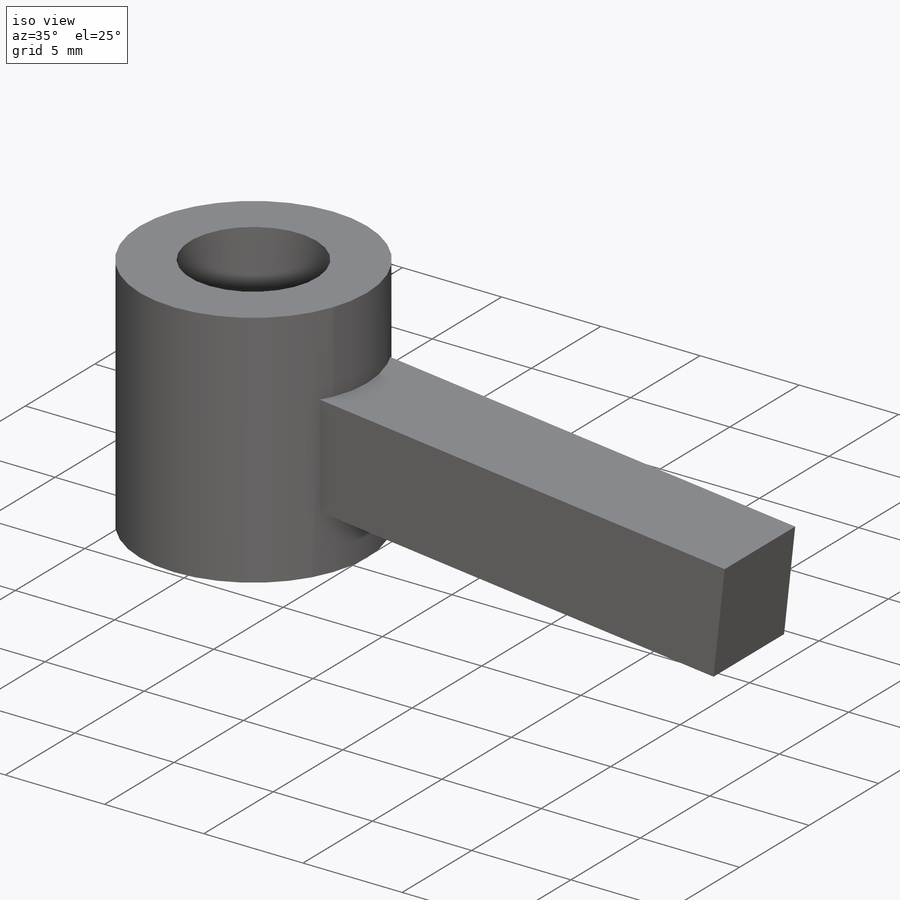
[diagram: iso view]
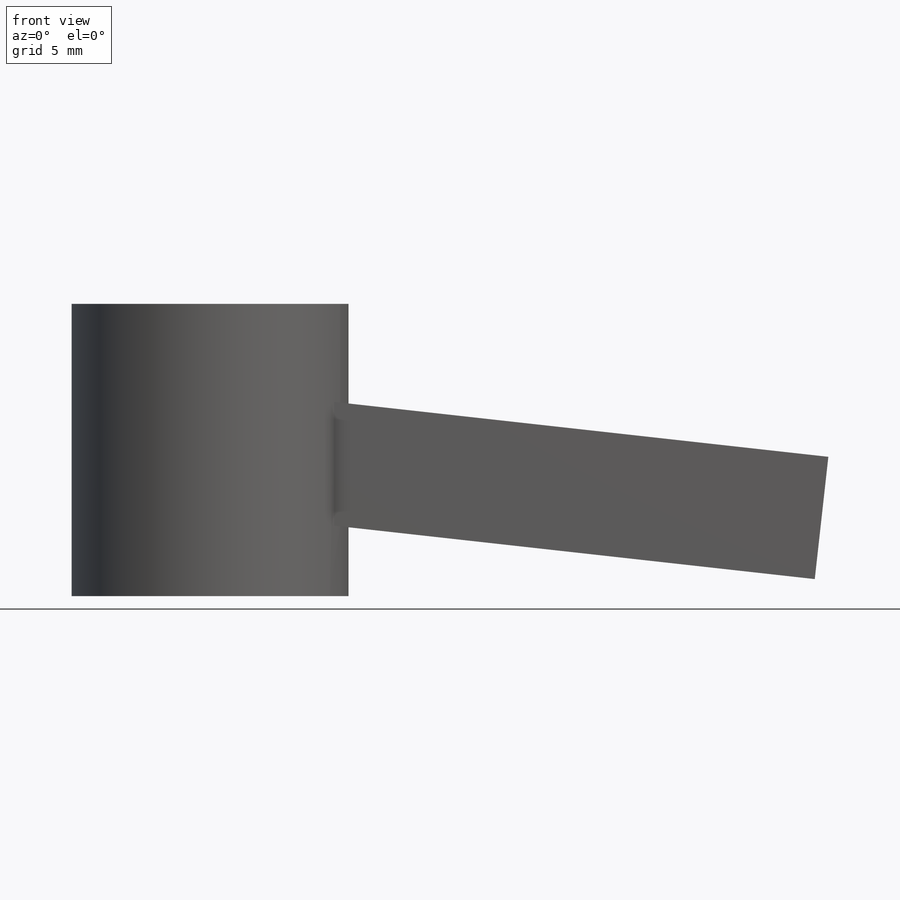
[diagram: front view]
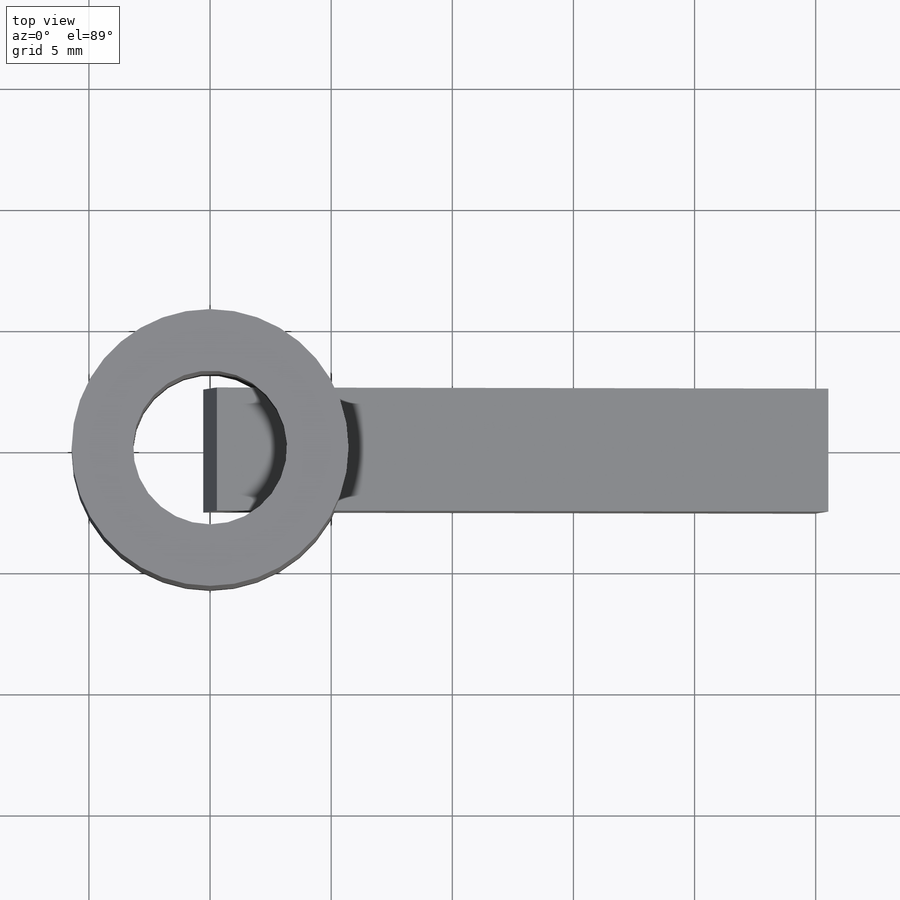
[diagram: top view]
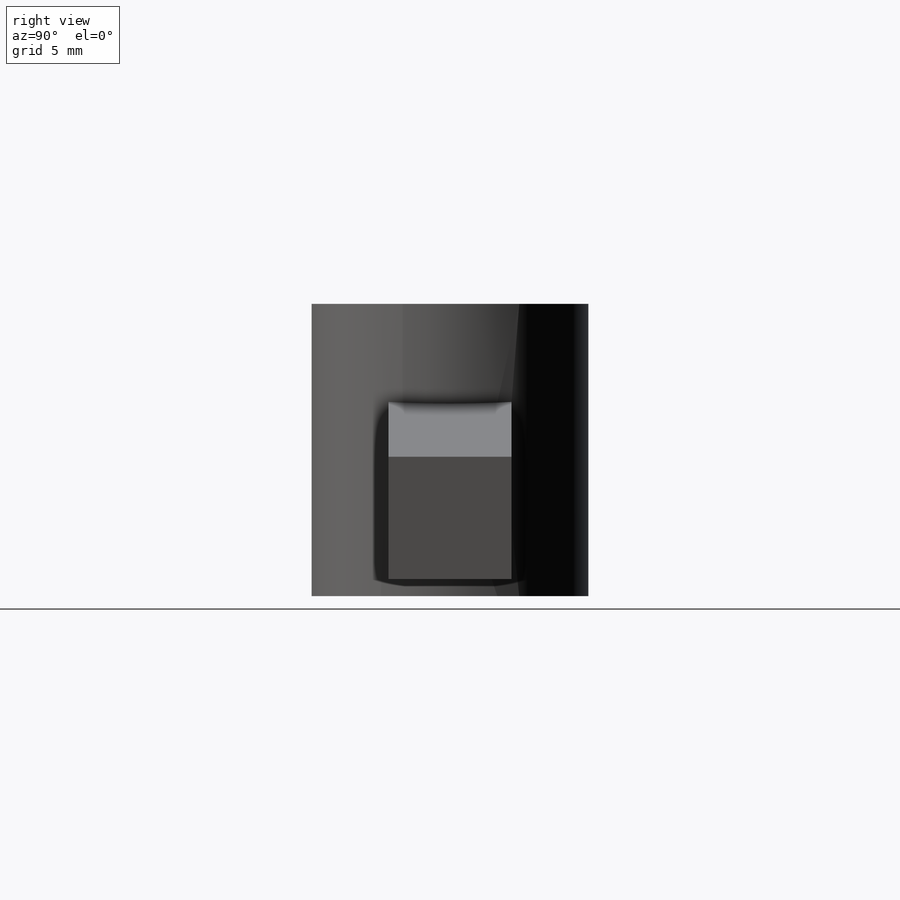
[diagram: right view]
SOLIDWORKS PART (.sldprt)
format: sldprt  version: not decoded by parser v0  size: 178,688 bytes
history: native  units: mm
features: sketch x4, extrude x2, material x1, revolve x1, cut_extrude x1, plane x1 (+13 scaffold rows collapsed)
feature tree (23):
  scaffold x13  (default folders/planes/origin — collapsed)
  material  "1023 Carbon Steel Sheet (SS)"
  sketch  "Sketch1"  dims[D1=11.43mm]
  revolve  "Revolve1"  Angle=360deg
  sketch  "Sketch2"  dims[D1=~2.461073mm]
  cut_extrude  "Cut-Extrude1"  Depth=2.54mm
  sketch  "Sketch3"  dims[D1=2.54mm]
  extrude  "Boss-Extrude1"  Depth=6.0325mm
  plane  "Plane1"
  sketch  "Sketch4"  dims[D1=5.08mm]
  extrude  "Boss-Extrude2"  Depth=25.4mm
decode coverage: 8 of 8 modeling features carry decoded parameters
note: ~ marks probable driven/reference dimensions
note: suppression state not decoded; provenance and decode notes live in map.json
